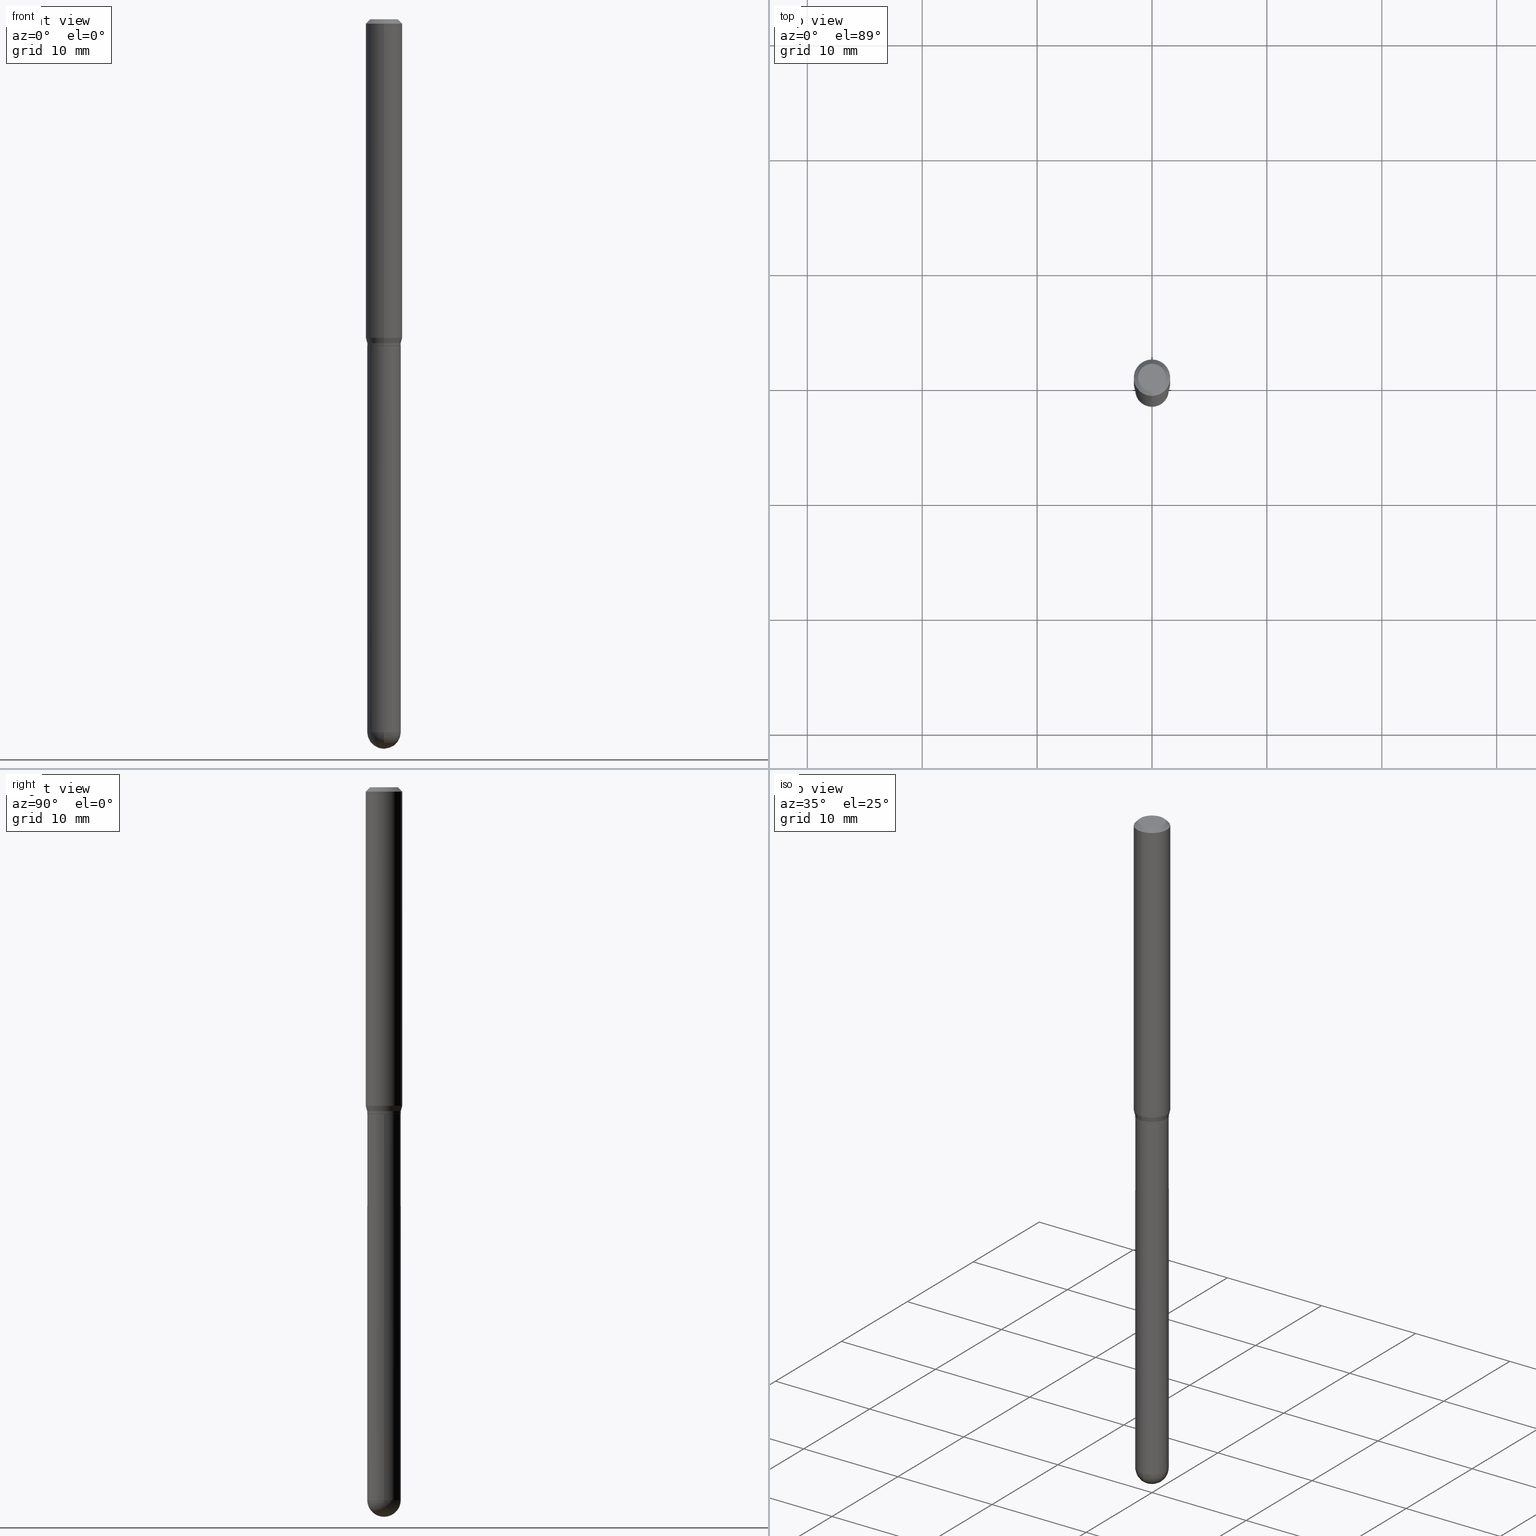
[diagram: canonical four-view strip — front | top / right | iso, engineering-drawing reading convention]
A machine part, canonical four-view strip (front | top / right | iso — engineering-drawing reading convention). The complete STEP part file that produces these views, byte-faithful:
ISO-10303-21;
HEADER;
FILE_DESCRIPTION (( 'STEP AP203' ),
    '1' );
FILE_NAME ('01581.STEP',
    '2024-03-07T19:42:00',
    ( '' ),
    ( '' ),
    'SwSTEP 2.0',
    'SolidWorks 2023',
    '' );
FILE_SCHEMA (( 'CONFIG_CONTROL_DESIGN' ));
ENDSEC;

DATA;
#1 = CC_DESIGN_PERSON_AND_ORGANIZATION_ASSIGNMENT ( #402, #507, ( #190 ) ) ;
#2 = DATE_TIME_ROLE ( 'classification_date' ) ;
#3 = ORIENTED_EDGE ( 'NONE', *, *, #29, .T. ) ;
#4 = DIRECTION ( 'NONE',  ( -2.445495560158936621E-29, 3.491443025629922431E-15, 1.000000000000000000 ) ) ;
#5 = ADVANCED_FACE ( 'NONE', ( #404 ), #366, .T. ) ;
#6 = ORIENTED_EDGE ( 'NONE', *, *, #217, .T. ) ;
#7 = ADVANCED_BREP_SHAPE_REPRESENTATION ( '01581', ( #459, #289, #442 ), #406 ) ;
#8 = DIRECTION ( 'NONE',  ( 1.000000000000000000, -6.982962677686265922E-15, 4.876176775795935232E-29 ) ) ;
#9 = DIRECTION ( 'NONE',  ( -2.445495560158936621E-29, 3.491443025629922431E-15, 1.000000000000000000 ) ) ;
#10 = AXIS2_PLACEMENT_3D ( 'NONE', #296, #251, #176 ) ;
#11 = CARTESIAN_POINT ( 'NONE',  ( 0.05750000000000000250, -4.311979453471284209E-15, -1.120000000000000329 ) ) ;
#12 = ORIENTED_EDGE ( 'NONE', *, *, #302, .F. ) ;
#13 = APPROVAL_PERSON_ORGANIZATION ( #435, #245, #468 ) ;
#14 = VERTEX_POINT ( 'NONE', #93 ) ;
#15 = ORIENTED_EDGE ( 'NONE', *, *, #135, .F. ) ;
#16 = DIRECTION ( 'NONE',  ( -2.445495560158936621E-29, 3.491443025629922431E-15, 1.000000000000000000 ) ) ;
#17 = AXIS2_PLACEMENT_3D ( 'NONE', #28, #33, #395 ) ;
#18 = CYLINDRICAL_SURFACE ( 'NONE', #419, 0.06250000000000000000 ) ;
#19 = EDGE_CURVE ( 'NONE', #196, #207, #132, .T. ) ;
#20 = DIRECTION ( 'NONE',  ( -2.445495560158936621E-29, 3.491443025629922431E-15, 1.000000000000000000 ) ) ;
#21 = CARTESIAN_POINT ( 'NONE',  ( 2.738955027378009755E-29, -3.910416188705514007E-15, -1.120000000000000329 ) ) ;
#22 = DIRECTION ( 'NONE',  ( -6.982962677686265922E-15, -1.000000000000000000, 2.396357889179178137E-15 ) ) ;
#23 = LINE ( 'NONE', #492, #213 ) ;
#24 = CARTESIAN_POINT ( 'NONE',  ( 4.085620730620579698E-16, 0.05750000000000005801, -2.007579739737207577E-16 ) ) ;
#25 = CARTESIAN_POINT ( 'NONE',  ( 4.050093593832844842E-16, 0.05699999999999608852, -1.120000000000000551 ) ) ;
#26 = AXIS2_PLACEMENT_3D ( 'NONE', #61, #224, #220 ) ;
#27 = DIRECTION ( 'NONE',  ( -2.445495560158936621E-29, 3.491443025629922431E-15, 1.000000000000000000 ) ) ;
#28 = CARTESIAN_POINT ( 'NONE',  ( 2.714500071776419767E-29, -3.875501758449215070E-15, -1.110000000000000098 ) ) ;
#29 = EDGE_CURVE ( 'NONE', #207, #121, #384, .T. ) ;
#30 = CONICAL_SURFACE ( 'NONE', #17, 0.05750000000000005801, 0.2617993877991506846 ) ;
#31 = CC_DESIGN_DATE_AND_TIME_ASSIGNMENT ( #283, #470, ( #484 ) ) ;
#32 = DIRECTION ( 'NONE',  ( -2.445468806185136597E-29, 3.491481338843145583E-15, 1.000000000000000000 ) ) ;
#33 = DIRECTION ( 'NONE',  ( -2.445495560158936621E-29, 3.491443025629922431E-15, 1.000000000000000000 ) ) ;
#34 = PERSON_AND_ORGANIZATION_ROLE ( 'design_supplier' ) ;
#35 = ORIENTED_EDGE ( 'NONE', *, *, #275, .T. ) ;
#36 = CARTESIAN_POINT ( 'NONE',  ( 0.000000000000000000, 0.000000000000000000, 0.000000000000000000 ) ) ;
#37 = ORIENTED_EDGE ( 'NONE', *, *, #210, .F. ) ;
#38 = CALENDAR_DATE ( 2024, 7, 3 ) ;
#39 = ORIENTED_EDGE ( 'NONE', *, *, #462, .F. ) ;
#40 = APPROVAL_DATE_TIME ( #464, #72 ) ;
#41 = EDGE_LOOP ( 'NONE', ( #325, #387, #433, #12 ) ) ;
#42 = CIRCLE ( 'NONE', #26, 0.05750000000000000250 ) ;
#43 = DIRECTION ( 'NONE',  ( -6.982962677686265922E-15, -1.000000000000000000, 3.483106191921935554E-15 ) ) ;
#44 = ADVANCED_FACE ( 'NONE', ( #258 ), #299, .F. ) ;
#45 = DATE_AND_TIME ( #403, #117 ) ;
#46 = DIRECTION ( 'NONE',  ( -6.982962677686265922E-15, -1.000000000000000000, 3.491443025629922431E-15 ) ) ;
#47 = CARTESIAN_POINT ( 'NONE',  ( -4.364351673553916201E-16, -0.06250000000000000000, 2.182151891018701273E-16 ) ) ;
#48 = CARTESIAN_POINT ( 'NONE',  ( 4.067857162226848841E-16, 0.05699999999999608852, -1.120000000000000551 ) ) ;
#49 = VERTEX_POINT ( 'NONE', #179 ) ;
#50 = VERTEX_POINT ( 'NONE', #11 ) ;
#51 = EDGE_CURVE ( 'NONE', #465, #279, #290, .T. ) ;
#52 = DIRECTION ( 'NONE',  ( -2.445495560158936621E-29, 3.491443025629922431E-15, 1.000000000000000000 ) ) ;
#53 = FACE_OUTER_BOUND ( 'NONE', #412, .T. ) ;
#54 = CARTESIAN_POINT ( 'NONE',  ( 4.015203539670203189E-16, 0.05749999999999149541, -2.442500000000000338 ) ) ;
#55 = ORIENTED_EDGE ( 'NONE', *, *, #497, .F. ) ;
#56 = ORIENTED_EDGE ( 'NONE', *, *, #29, .F. ) ;
#57 = CARTESIAN_POINT ( 'NONE',  ( 2.668866503375434655E-29, -3.810350544632300869E-15, -1.091339745962156105 ) ) ;
#58 = FACE_OUTER_BOUND ( 'NONE', #508, .T. ) ;
#59 = AXIS2_PLACEMENT_3D ( 'NONE', #443, #331, #43 ) ;
#60 = AXIS2_PLACEMENT_3D ( 'NONE', #57, #64, #221 ) ;
#61 = CARTESIAN_POINT ( 'NONE',  ( 5.973057559107196227E-29, -8.527943170124383355E-15, -2.442499999999999893 ) ) ;
#62 = PERSON ( 'UNSPECIFIED', 'UNSPECIFIED', 'UNSPECIFIED', ('UNSPECIFIED'), ('UNSPECIFIED'), ('UNSPECIFIED') ) ;
#63 = CARTESIAN_POINT ( 'NONE',  ( 5.968140352944414042E-29, -8.534984889219480121E-15, -2.442499999999999893 ) ) ;
#64 = DIRECTION ( 'NONE',  ( -2.445495560158936621E-29, 3.491443025629922431E-15, 1.000000000000000000 ) ) ;
#65 = CARTESIAN_POINT ( 'NONE',  ( -0.05750000000000000250, -5.810639061752296196E-15, -2.442499999999999893 ) ) ;
#66 = AXIS2_PLACEMENT_3D ( 'NONE', #182, #416, #151 ) ;
#67 = DIRECTION ( 'NONE',  ( 1.000000000000000000, -6.982962677686265922E-15, 4.883557194083112340E-29 ) ) ;
#68 = EDGE_CURVE ( 'NONE', #279, #463, #139, .T. ) ;
#69 = DIRECTION ( 'NONE',  ( 6.982962677686265922E-15, 1.000000000000000000, -3.483106191921935554E-15 ) ) ;
#70 = AXIS2_PLACEMENT_3D ( 'NONE', #488, #9, #142 ) ;
#71 = CIRCLE ( 'NONE', #341, 0.05750000000000000250 ) ;
#72 = APPROVAL ( #165, 'UNSPECIFIED' ) ;
#73 = APPROVAL_DATE_TIME ( #426, #245 ) ;
#74 = CONICAL_SURFACE ( 'NONE', #367, 0.05750000000000005801, 0.2617993877991506846 ) ;
#75 = APPROVAL_STATUS ( 'not_yet_approved' ) ;
#76 = ORIENTED_EDGE ( 'NONE', *, *, #453, .F. ) ;
#77 = EDGE_CURVE ( 'NONE', #49, #136, #330, .T. ) ;
#78 = CARTESIAN_POINT ( 'NONE',  ( 2.737732279597930116E-29, -3.908670467192699217E-15, -1.119500000000000384 ) ) ;
#79 = CYLINDRICAL_SURFACE ( 'NONE', #223, 0.05750000000000005801 ) ;
#80 = ORIENTED_EDGE ( 'NONE', *, *, #225, .F. ) ;
#81 = VERTEX_POINT ( 'NONE', #372 ) ;
#82 = ORIENTED_EDGE ( 'NONE', *, *, #217, .F. ) ;
#83 = LOCAL_TIME ( 14, 42, 0.000000000000000000, #172 ) ;
#84 = ORIENTED_EDGE ( 'NONE', *, *, #456, .T. ) ;
#85 = EDGE_CURVE ( 'NONE', #465, #277, #246, .T. ) ;
#86 = DIRECTION ( 'NONE',  ( -6.982962677686265922E-15, -1.000000000000000000, 2.396357889179178137E-15 ) ) ;
#87 = EDGE_CURVE ( 'NONE', #463, #49, #441, .T. ) ;
#88 = DIRECTION ( 'NONE',  ( -2.445468806185136597E-29, 3.491481338843145583E-15, 1.000000000000000000 ) ) ;
#89 = ORIENTED_EDGE ( 'NONE', *, *, #225, .T. ) ;
#90 = LINE ( 'NONE', #248, #116 ) ;
#91 = CIRCLE ( 'NONE', #171, 0.05750000000000007189 ) ;
#92 = CARTESIAN_POINT ( 'NONE',  ( 4.440892098500891416E-16, 0.06249999999999617667, -1.091339745962156327 ) ) ;
#93 = CARTESIAN_POINT ( 'NONE',  ( -3.773273898774340269E-16, -0.04749999999999999362, 1.569814042479620937E-16 ) ) ;
#94 = ORIENTED_EDGE ( 'NONE', *, *, #288, .T. ) ;
#95 = ADVANCED_FACE ( 'NONE', ( #208 ), #74, .T. ) ;
#96 = ADVANCED_FACE ( 'NONE', ( #485 ), #130, .T. ) ;
#97 = CARTESIAN_POINT ( 'NONE',  ( 4.085620730620851361E-16, 0.05749999999999618611, -1.110000000000000320 ) ) ;
#98 = DIRECTION ( 'NONE',  ( -2.445468806185136597E-29, 3.491481338843145583E-15, 1.000000000000000000 ) ) ;
#99 = CIRCLE ( 'NONE', #493, 0.05750000000000005801 ) ;
#100 = EDGE_LOOP ( 'NONE', ( #481, #94 ) ) ;
#101 = FACE_OUTER_BOUND ( 'NONE', #100, .T. ) ;
#102 = CARTESIAN_POINT ( 'NONE',  ( 0.000000000000000000, 0.000000000000000000, 0.000000000000000000 ) ) ;
#103 = EDGE_CURVE ( 'NONE', #178, #428, #155, .T. ) ;
#104 = LINE ( 'NONE', #25, #106 ) ;
#105 = COORDINATED_UNIVERSAL_TIME_OFFSET ( 5, 0, .BEHIND. ) ;
#106 = VECTOR ( 'NONE', #418, 39.37007874015748143 ) ;
#107 = CARTESIAN_POINT ( 'NONE',  ( 0.05750000000000000250, -6.620721488781313792E-15, -2.442499999999999893 ) ) ;
#108 = CARTESIAN_POINT ( 'NONE',  ( 0.000000000000000000, 0.000000000000000000, 0.000000000000000000 ) ) ;
#109 = EDGE_CURVE ( 'NONE', #143, #207, #42, .T. ) ;
#110 = DIRECTION ( 'NONE',  ( -6.982962677686266711E-15, -1.000000000000000000, 2.375519994490661302E-15 ) ) ;
#111 = CARTESIAN_POINT ( 'NONE',  ( 2.738925062927354020E-29, -3.910459099504324188E-15, -1.120000000000000329 ) ) ;
#112 = AXIS2_PLACEMENT_3D ( 'NONE', #349, #98, #256 ) ;
#113 = LENGTH_MEASURE_WITH_UNIT ( LENGTH_MEASURE( 0.02539999999999999897 ), #504 );
#114 = EDGE_CURVE ( 'NONE', #196, #335, #91, .T. ) ;
#115 = FACE_OUTER_BOUND ( 'NONE', #281, .T. ) ;
#116 = VECTOR ( 'NONE', #405, 39.37007874015748143 ) ;
#117 = LOCAL_TIME ( 14, 42, 0.000000000000000000, #471 ) ;
#118 = ORIENTED_EDGE ( 'NONE', *, *, #275, .F. ) ;
#119 = CARTESIAN_POINT ( 'NONE',  ( 0.000000000000000000, 0.000000000000000000, 0.000000000000000000 ) ) ;
#120 = ORIENTED_EDGE ( 'NONE', *, *, #103, .F. ) ;
#121 = VERTEX_POINT ( 'NONE', #107 ) ;
#122 = ORIENTED_EDGE ( 'NONE', *, *, #19, .T. ) ;
#123 = PERSON_AND_ORGANIZATION_ROLE ( 'creator' ) ;
#124 = EDGE_LOOP ( 'NONE', ( #76, #287, #3, #163, #320 ) ) ;
#125 = UNCERTAINTY_MEASURE_WITH_UNIT (LENGTH_MEASURE( 1.000000000000000082E-05 ), #272, 'distance_accuracy_value', 'NONE');
#126 = DIRECTION ( 'NONE',  ( 1.839019923739603076E-15, 0.2588190451025253469, 0.9659258262890670910 ) ) ;
#127 = PERSON_AND_ORGANIZATION ( #62, #358 ) ;
#128 = ORIENTED_EDGE ( 'NONE', *, *, #382, .T. ) ;
#129 = ADVANCED_FACE ( 'NONE', ( #228 ), #340, .T. ) ;
#130 = CYLINDRICAL_SURFACE ( 'NONE', #429, 0.05750000000000000250 ) ;
#131 = EDGE_LOOP ( 'NONE', ( #352, #327 ) ) ;
#132 = CIRCLE ( 'NONE', #10, 0.05750000000000007189 ) ;
#133 = AXIS2_PLACEMENT_3D ( 'NONE', #350, #308, #110 ) ;
#134 = EDGE_CURVE ( 'NONE', #279, #465, #199, .T. ) ;
#135 = EDGE_CURVE ( 'NONE', #81, #136, #309, .T. ) ;
#136 = VERTEX_POINT ( 'NONE', #458 ) ;
#137 = ADVANCED_FACE ( 'NONE', ( #101 ), #231, .F. ) ;
#138 = CARTESIAN_POINT ( 'NONE',  ( 3.668243340238407173E-31, -5.237164538444886679E-17, -0.01500000000000000812 ) ) ;
#139 = LINE ( 'NONE', #478, #454 ) ;
#140 = DIRECTION ( 'NONE',  ( -4.851104656540964275E-15, -0.7071067811865500152, -0.7071067811865450192 ) ) ;
#141 = DIRECTION ( 'NONE',  ( -2.445495560158936341E-29, 3.491443025629922431E-15, 1.000000000000000000 ) ) ;
#142 = DIRECTION ( 'NONE',  ( -6.982962677686266711E-15, -1.000000000000000000, 2.375519994490661302E-15 ) ) ;
#143 = VERTEX_POINT ( 'NONE', #65 ) ;
#144 = SPHERICAL_SURFACE ( 'NONE', #503, 0.05750000000000007189 ) ;
#145 = AXIS2_PLACEMENT_3D ( 'NONE', #301, #265, #69 ) ;
#146 = DIRECTION ( 'NONE',  ( -6.982962677686265922E-15, -1.000000000000000000, 2.396357889179178137E-15 ) ) ;
#147 = EDGE_LOOP ( 'NONE', ( #200, #318, #369, #361, #354 ) ) ;
#148 = CARTESIAN_POINT ( 'NONE',  ( -4.364351673553650454E-16, -0.06250000000000383027, -1.091339745962155883 ) ) ;
#149 = ADVANCED_FACE ( 'NONE', ( #268 ), #377, .T. ) ;
#150 = DIRECTION ( 'NONE',  ( 1.000000000000000000, -6.982962677686265133E-15, 0.000000000000000000 ) ) ;
#151 = DIRECTION ( 'NONE',  ( -6.982962677686265922E-15, -1.000000000000000000, 3.483106191921935554E-15 ) ) ;
#152 = DIRECTION ( 'NONE',  ( -6.982962677686266711E-15, -1.000000000000000000, 3.491443025629922826E-15 ) ) ;
#153 = FACE_OUTER_BOUND ( 'NONE', #212, .T. ) ;
#154 = CARTESIAN_POINT ( 'NONE',  ( -0.05750000000000000250, -5.810639061752296196E-15, -1.120000000000000329 ) ) ;
#155 = CIRCLE ( 'NONE', #501, 0.05700000000000000205 ) ;
#156 = CARTESIAN_POINT ( 'NONE',  ( -3.980288726280897482E-16, -0.05700000000000390865, -1.120000000000000107 ) ) ;
#157 = ADVANCED_FACE ( 'NONE', ( #424 ), #300, .T. ) ;
#158 = CARTESIAN_POINT ( 'NONE',  ( 4.263256414560873608E-16, 0.05749999999999618611, -1.110000000000000320 ) ) ;
#159 = DIRECTION ( 'NONE',  ( 4.937700262164548042E-15, 0.7071067811865451302, -0.7071067811865499042 ) ) ;
#160 = ADVANCED_FACE ( 'NONE', ( #153 ), #421, .T. ) ;
#161 = PERSON_AND_ORGANIZATION ( #62, #358 ) ;
#162 = ORIENTED_EDGE ( 'NONE', *, *, #77, .F. ) ;
#163 = ORIENTED_EDGE ( 'NONE', *, *, #422, .T. ) ;
#164 = DIRECTION ( 'NONE',  ( -2.445468806185136597E-29, 3.491481338843145583E-15, 1.000000000000000000 ) ) ;
#165 = APPROVAL_STATUS ( 'not_yet_approved' ) ;
#166 = ORIENTED_EDGE ( 'NONE', *, *, #297, .F. ) ;
#167 = AXIS2_PLACEMENT_3D ( 'NONE', #417, #20, #152 ) ;
#168 = DIRECTION ( 'NONE',  ( 0.000000000000000000, 0.000000000000000000, 1.000000000000000000 ) ) ;
#169 = DIRECTION ( 'NONE',  ( -6.982962677686266711E-15, -1.000000000000000000, 3.491443025629922826E-15 ) ) ;
#170 = PRODUCT_DEFINITION_SHAPE ( 'NONE', 'NONE',  #484 ) ;
#171 = AXIS2_PLACEMENT_3D ( 'NONE', #498, #67, #261 ) ;
#172 = COORDINATED_UNIVERSAL_TIME_OFFSET ( 5, 0, .BEHIND. ) ;
#173 = ORIENTED_EDGE ( 'NONE', *, *, #298, .F. ) ;
#174 = DIRECTION ( 'NONE',  ( -6.982962677686266711E-15, -1.000000000000000000, 2.375519994490661302E-15 ) ) ;
#175 = DIRECTION ( 'NONE',  ( -2.445495560158936621E-29, 3.491443025629922431E-15, 1.000000000000000000 ) ) ;
#176 = DIRECTION ( 'NONE',  ( -7.105427357601000281E-15, -1.000000000000000000, 0.000000000000000000 ) ) ;
#177 = AXIS2_PLACEMENT_3D ( 'NONE', #380, #195, #22 ) ;
#178 = VERTEX_POINT ( 'NONE', #156 ) ;
#179 = CARTESIAN_POINT ( 'NONE',  ( -4.364351673553912750E-16, -0.06250000000000005551, -0.01499999999999979128 ) ) ;
#180 = ORIENTED_EDGE ( 'NONE', *, *, #210, .T. ) ;
#181 = CIRCLE ( 'NONE', #467, 0.05750000000000005801 ) ;
#182 = CARTESIAN_POINT ( 'NONE',  ( 3.668243340238407173E-31, -5.237164538444886679E-17, -0.01500000000000000812 ) ) ;
#183 = CARTESIAN_POINT ( 'NONE',  ( 0.000000000000000000, 0.000000000000000000, 0.000000000000000000 ) ) ;
#184 = CARTESIAN_POINT ( 'NONE',  ( -4.015203539669337414E-16, -0.05750000000000403400, -1.119500000000000162 ) ) ;
#185 = CIRCLE ( 'NONE', #112, 0.05750000000000000250 ) ;
#186 = DIRECTION ( 'NONE',  ( 1.000000000000000000, -6.982962677686265922E-15, 4.876176775795935232E-29 ) ) ;
#187 = DIRECTION ( 'NONE',  ( -2.445468806185136877E-29, 3.491481338843145188E-15, 1.000000000000000000 ) ) ;
#188 = CARTESIAN_POINT ( 'NONE',  ( 2.738925062927354020E-29, -3.910459099504324188E-15, -1.120000000000000329 ) ) ;
#189 = APPLICATION_CONTEXT ( 'configuration controlled 3d designs of mechanical parts and assemblies' ) ;
#190 = PRODUCT_DEFINITION_FORMATION_WITH_SPECIFIED_SOURCE ( 'ANY', '', #400, .NOT_KNOWN. ) ;
#191 = ADVANCED_FACE ( 'NONE', ( #58 ), #18, .T. ) ;
#192 = FACE_OUTER_BOUND ( 'NONE', #41, .T. ) ;
#193 = CARTESIAN_POINT ( 'NONE',  ( 2.737732279597930116E-29, -3.908670467192699217E-15, -1.119500000000000384 ) ) ;
#194 = AXIS2_PLACEMENT_3D ( 'NONE', #311, #141, #46 ) ;
#195 = DIRECTION ( 'NONE',  ( -2.445495560158936621E-29, 3.491443025629922431E-15, 1.000000000000000000 ) ) ;
#196 = VERTEX_POINT ( 'NONE', #226 ) ;
#197 = CC_DESIGN_PERSON_AND_ORGANIZATION_ASSIGNMENT ( #276, #201, ( #400 ) ) ;
#198 = CLOSED_SHELL ( 'NONE', ( #250, #149, #157, #191, #95, #232, #160, #282, #44, #253, #397, #378 ) ) ;
#199 = CIRCLE ( 'NONE', #133, 0.05750000000000005801 ) ;
#200 = ORIENTED_EDGE ( 'NONE', *, *, #505, .T. ) ;
#201 = PERSON_AND_ORGANIZATION_ROLE ( 'design_owner' ) ;
#202 = ORIENTED_EDGE ( 'NONE', *, *, #87, .T. ) ;
#203 = EDGE_CURVE ( 'NONE', #50, #466, #264, .T. ) ;
#204 = EDGE_LOOP ( 'NONE', ( #173, #128, #432, #293 ) ) ;
#205 = VECTOR ( 'NONE', #411, 39.37007874015748143 ) ;
#206 = SECURITY_CLASSIFICATION_LEVEL ( 'unclassified' ) ;
#207 = VERTEX_POINT ( 'NONE', #303 ) ;
#208 = FACE_OUTER_BOUND ( 'NONE', #434, .T. ) ;
#209 = APPROVAL_DATE_TIME ( #45, #334 ) ;
#210 = EDGE_CURVE ( 'NONE', #428, #323, #104, .T. ) ;
#211 = DIRECTION ( 'NONE',  ( -6.982962677686266711E-15, -1.000000000000000000, 3.491443025629922826E-15 ) ) ;
#212 = EDGE_LOOP ( 'NONE', ( #166, #313, #202, #39 ) ) ;
#213 = VECTOR ( 'NONE', #27, 39.37007874015748143 ) ;
#214 = CARTESIAN_POINT ( 'NONE',  ( 3.316907271900976096E-16, 0.04749999999999999362, -1.702746134521509086E-16 ) ) ;
#215 = LINE ( 'NONE', #336, #205 ) ;
#216 = DIRECTION ( 'NONE',  ( -2.445468806185136597E-29, 3.491481338843145583E-15, 1.000000000000000000 ) ) ;
#217 = EDGE_CURVE ( 'NONE', #178, #362, #379, .T. ) ;
#218 = DIRECTION ( 'NONE',  ( -1.807323732225332900E-15, -0.2588190451025185745, 0.9659258262890689783 ) ) ;
#219 = LOCAL_TIME ( 14, 42, 0.000000000000000000, #235 ) ;
#220 = DIRECTION ( 'NONE',  ( 1.000000000000000000, -6.982962677686273810E-15, 0.000000000000000000 ) ) ;
#221 = DIRECTION ( 'NONE',  ( -6.982962677686265922E-15, -1.000000000000000000, 4.370956789862821150E-15 ) ) ;
#222 = AXIS2_PLACEMENT_3D ( 'NONE', #214, #446, #368 ) ;
#223 = AXIS2_PLACEMENT_3D ( 'NONE', #36, #4, #169 ) ;
#224 = DIRECTION ( 'NONE',  ( -2.445468806185136597E-29, 3.491481338843145583E-15, 1.000000000000000000 ) ) ;
#225 = EDGE_CURVE ( 'NONE', #428, #178, #408, .T. ) ;
#226 = CARTESIAN_POINT ( 'NONE',  ( 6.111213412381450399E-29, -8.732224206655412537E-15, -2.500000000000000000 ) ) ;
#227 = CC_DESIGN_SECURITY_CLASSIFICATION ( #274, ( #190 ) ) ;
#228 = FACE_OUTER_BOUND ( 'NONE', #500, .T. ) ;
#229 = CARTESIAN_POINT ( 'NONE',  ( 2.668866503375434655E-29, -3.810350544632300869E-15, -1.091339745962156105 ) ) ;
#230 = VECTOR ( 'NONE', #159, 39.37007874015748143 ) ;
#231 = PLANE ( 'NONE',  #312 ) ;
#232 = ADVANCED_FACE ( 'NONE', ( #192 ), #30, .T. ) ;
#233 = APPROVAL_STATUS ( 'not_yet_approved' ) ;
#234 = VECTOR ( 'NONE', #401, 39.37007874015748143 ) ;
#235 = COORDINATED_UNIVERSAL_TIME_OFFSET ( 5, 0, .BEHIND. ) ;
#236 = ORIENTED_EDGE ( 'NONE', *, *, #19, .F. ) ;
#237 = DESIGN_CONTEXT ( 'detailed design', #189, 'design' ) ;
#238 = CC_DESIGN_PERSON_AND_ORGANIZATION_ASSIGNMENT ( #278, #34, ( #190 ) ) ;
#239 = ORIENTED_EDGE ( 'NONE', *, *, #298, .T. ) ;
#240 = PLANE ( 'NONE',  #194 ) ;
#241 = CIRCLE ( 'NONE', #365, 0.06250000000000000000 ) ;
#242 = ORIENTED_EDGE ( 'NONE', *, *, #109, .F. ) ;
#243 = CALENDAR_DATE ( 2024, 7, 3 ) ;
#244 = EDGE_LOOP ( 'NONE', ( #490, #35, #436, #15 ) ) ;
#245 = APPROVAL ( #75, 'UNSPECIFIED' ) ;
#246 = LINE ( 'NONE', #97, #360 ) ;
#247 = VECTOR ( 'NONE', #306, 39.37007874015748143 ) ;
#248 = CARTESIAN_POINT ( 'NONE',  ( 0.05750000000000000250, -4.015203539669603161E-16, 2.803801646082662941E-30 ) ) ;
#249 = DIRECTION ( 'NONE',  ( 1.000000000000000000, -6.982962677686273810E-15, 0.000000000000000000 ) ) ;
#250 = ADVANCED_FACE ( 'NONE', ( #115 ), #79, .T. ) ;
#251 = DIRECTION ( 'NONE',  ( -1.000000000000000000, 7.105427357601001070E-15, -4.926315508542082329E-29 ) ) ;
#252 = CC_DESIGN_APPROVAL ( #334, ( #274 ) ) ;
#253 = ADVANCED_FACE ( 'NONE', ( #280 ), #240, .F. ) ;
#254 = CARTESIAN_POINT ( 'NONE',  ( 2.714500071776419767E-29, -3.875501758449215070E-15, -1.110000000000000098 ) ) ;
#255 = CIRCLE ( 'NONE', #60, 0.06250000000000000000 ) ;
#256 = DIRECTION ( 'NONE',  ( 1.000000000000000000, -6.982962677686273810E-15, 0.000000000000000000 ) ) ;
#257 = FACE_OUTER_BOUND ( 'NONE', #357, .T. ) ;
#258 = FACE_OUTER_BOUND ( 'NONE', #131, .T. ) ;
#259 = DIRECTION ( 'NONE',  ( -6.982962677686265922E-15, -1.000000000000000000, 3.491443025629922037E-15 ) ) ;
#260 = DIRECTION ( 'NONE',  ( -6.982962677686266711E-15, -1.000000000000000000, 3.491443025629922826E-15 ) ) ;
#261 = DIRECTION ( 'NONE',  ( 6.982962677686265922E-15, 1.000000000000000000, 0.000000000000000000 ) ) ;
#262 = DIMENSIONAL_EXPONENTS ( 1.000000000000000000, 0.000000000000000000, 0.000000000000000000, 0.000000000000000000, 0.000000000000000000, 0.000000000000000000, 0.000000000000000000 ) ;
#263 = EDGE_CURVE ( 'NONE', #81, #14, #322, .T. ) ;
#264 = CIRCLE ( 'NONE', #509, 0.05750000000000000250 ) ;
#265 = DIRECTION ( 'NONE',  ( 2.445495560158936621E-29, -3.491443025629922431E-15, -1.000000000000000000 ) ) ;
#266 = LINE ( 'NONE', #24, #292 ) ;
#267 = DIRECTION ( 'NONE',  ( -2.445468806185136597E-29, 3.491481338843145583E-15, 1.000000000000000000 ) ) ;
#268 = FACE_OUTER_BOUND ( 'NONE', #314, .T. ) ;
#269 = AXIS2_PLACEMENT_3D ( 'NONE', #183, #448, #259 ) ;
#270 = CC_DESIGN_PERSON_AND_ORGANIZATION_ASSIGNMENT ( #479, #123, ( #484 ) ) ;
#271 = APPLICATION_CONTEXT ( 'configuration controlled 3d designs of mechanical parts and assemblies' ) ;
#272 =( CONVERSION_BASED_UNIT ( 'INCH', #113 ) LENGTH_UNIT ( ) NAMED_UNIT ( #262 ) );
#273 = MECHANICAL_CONTEXT ( 'NONE', #271, 'mechanical' ) ;
#274 = SECURITY_CLASSIFICATION ( '', '', #206 ) ;
#275 = EDGE_CURVE ( 'NONE', #14, #49, #440, .T. ) ;
#276 = PERSON_AND_ORGANIZATION ( #62, #358 ) ;
#277 = VERTEX_POINT ( 'NONE', #92 ) ;
#278 = PERSON_AND_ORGANIZATION ( #62, #358 ) ;
#279 = VERTEX_POINT ( 'NONE', #487 ) ;
#280 = FACE_OUTER_BOUND ( 'NONE', #472, .T. ) ;
#281 = EDGE_LOOP ( 'NONE', ( #469, #239, #294, #55 ) ) ;
#282 = ADVANCED_FACE ( 'NONE', ( #257 ), #425, .T. ) ;
#283 = DATE_AND_TIME ( #317, #396 ) ;
#284 = ORIENTED_EDGE ( 'NONE', *, *, #87, .F. ) ;
#285 = APPROVAL_PERSON_ORGANIZATION ( #161, #334, #319 ) ;
#286 = ORIENTED_EDGE ( 'NONE', *, *, #114, .F. ) ;
#287 = ORIENTED_EDGE ( 'NONE', *, *, #109, .T. ) ;
#288 = EDGE_CURVE ( 'NONE', #466, #50, #71, .T. ) ;
#289 = MANIFOLD_SOLID_BREP ( 'Body-Move/Copy2[2]', #198 ) ;
#290 = CIRCLE ( 'NONE', #70, 0.05750000000000005801 ) ;
#291 = CARTESIAN_POINT ( 'NONE',  ( 0.000000000000000000, 0.000000000000000000, 0.000000000000000000 ) ) ;
#292 = VECTOR ( 'NONE', #444, 39.37007874015748143 ) ;
#293 = ORIENTED_EDGE ( 'NONE', *, *, #51, .F. ) ;
#294 = ORIENTED_EDGE ( 'NONE', *, *, #134, .F. ) ;
#295 = DIRECTION ( 'NONE',  ( 2.445495560158936621E-29, -3.491443025629922431E-15, -1.000000000000000000 ) ) ;
#296 = CARTESIAN_POINT ( 'NONE',  ( 5.968140352944414042E-29, -8.534984889219480121E-15, -2.442499999999999893 ) ) ;
#297 = EDGE_CURVE ( 'NONE', #277, #136, #215, .T. ) ;
#298 = EDGE_CURVE ( 'NONE', #323, #465, #266, .T. ) ;
#299 = PLANE ( 'NONE',  #222 ) ;
#300 = CONICAL_SURFACE ( 'NONE', #145, 0.06250000000000000000, 0.7853981633974483900 ) ;
#301 = CARTESIAN_POINT ( 'NONE',  ( 3.668243340238407173E-31, -5.237164538444886679E-17, -0.01500000000000000812 ) ) ;
#302 = EDGE_CURVE ( 'NONE', #277, #463, #255, .T. ) ;
#303 = CARTESIAN_POINT ( 'NONE',  ( -4.085620730619980656E-16, -0.05750000000000857203, -2.442499999999999893 ) ) ;
#304 = FACE_OUTER_BOUND ( 'NONE', #512, .T. ) ;
#305 = EDGE_CURVE ( 'NONE', #362, #323, #99, .T. ) ;
#306 = DIRECTION ( 'NONE',  ( -4.937700262164674260E-15, -0.7071067811865632269, 0.7071067811865319186 ) ) ;
#307 = DIRECTION ( 'NONE',  ( 6.982962677686266711E-15, 1.000000000000000000, -4.751039988981321814E-15 ) ) ;
#308 = DIRECTION ( 'NONE',  ( -2.445495560158936621E-29, 3.491443025629922431E-15, 1.000000000000000000 ) ) ;
#309 = LINE ( 'NONE', #383, #230 ) ;
#310 = PRODUCT_RELATED_PRODUCT_CATEGORY ( 'detail', '', ( #400 ) ) ;
#311 = CARTESIAN_POINT ( 'NONE',  ( 2.738955027378009755E-29, -3.910416188705514007E-15, -1.120000000000000329 ) ) ;
#312 = AXIS2_PLACEMENT_3D ( 'NONE', #452, #344, #385 ) ;
#313 = ORIENTED_EDGE ( 'NONE', *, *, #302, .T. ) ;
#314 = EDGE_LOOP ( 'NONE', ( #394, #180, #486, #82 ) ) ;
#315 = EDGE_CURVE ( 'NONE', #121, #335, #185, .T. ) ;
#316 = ORIENTED_EDGE ( 'NONE', *, *, #456, .F. ) ;
#317 = CALENDAR_DATE ( 2024, 7, 3 ) ;
#318 = ORIENTED_EDGE ( 'NONE', *, *, #453, .T. ) ;
#319 = APPROVAL_ROLE ( '' ) ;
#320 = ORIENTED_EDGE ( 'NONE', *, *, #288, .F. ) ;
#321 = AXIS2_PLACEMENT_3D ( 'NONE', #363, #88, #8 ) ;
#322 = CIRCLE ( 'NONE', #445, 0.04749999999999999362 ) ;
#323 = VERTEX_POINT ( 'NONE', #449 ) ;
#324 = APPLICATION_PROTOCOL_DEFINITION ( 'international standard', 'config_control_design', 1994, #271 ) ;
#325 = ORIENTED_EDGE ( 'NONE', *, *, #85, .F. ) ;
#326 = APPROVAL_ROLE ( '' ) ;
#327 = ORIENTED_EDGE ( 'NONE', *, *, #381, .T. ) ;
#328 = CONICAL_SURFACE ( 'NONE', #483, 0.05700000000000000205, 0.7853981633974739252 ) ;
#329 = ORIENTED_EDGE ( 'NONE', *, *, #85, .T. ) ;
#330 = CIRCLE ( 'NONE', #59, 0.06250000000000000000 ) ;
#331 = DIRECTION ( 'NONE',  ( -2.445495560158936621E-29, 3.491443025629922431E-15, 1.000000000000000000 ) ) ;
#332 = AXIS2_PLACEMENT_3D ( 'NONE', #494, #450, #414 ) ;
#333 = ORIENTED_EDGE ( 'NONE', *, *, #114, .T. ) ;
#334 = APPROVAL ( #233, 'UNSPECIFIED' ) ;
#335 = VERTEX_POINT ( 'NONE', #54 ) ;
#336 = CARTESIAN_POINT ( 'NONE',  ( 4.440892098500625669E-16, 0.06250000000000000000, -2.182151891018701273E-16 ) ) ;
#337 = CARTESIAN_POINT ( 'NONE',  ( -4.287811248607203282E-16, -0.06250000000000005551, -0.01499999999999979128 ) ) ;
#338 = ORIENTED_EDGE ( 'NONE', *, *, #315, .F. ) ;
#339 = VECTOR ( 'NONE', #187, 39.37007874015748143 ) ;
#340 = SPHERICAL_SURFACE ( 'NONE', #353, 0.05750000000000007189 ) ;
#341 = AXIS2_PLACEMENT_3D ( 'NONE', #111, #32, #389 ) ;
#342 = DIRECTION ( 'NONE',  ( -6.982962677686265922E-15, -1.000000000000000000, 4.370956789862821150E-15 ) ) ;
#343 = FACE_OUTER_BOUND ( 'NONE', #204, .T. ) ;
#344 = DIRECTION ( 'NONE',  ( 2.438088387897960049E-29, -3.491481338843145188E-15, -1.000000000000000000 ) ) ;
#345 = DIRECTION ( 'NONE',  ( -2.445495560158936621E-29, 3.491443025629922431E-15, 1.000000000000000000 ) ) ;
#346 = CARTESIAN_POINT ( 'NONE',  ( -3.980288726280897482E-16, -0.05700000000000390865, -1.120000000000000107 ) ) ;
#347 = LOCAL_TIME ( 14, 42, 0.000000000000000000, #105 ) ;
#348 = DIRECTION ( 'NONE',  ( -2.445495560158936621E-29, 3.491443025629922431E-15, 1.000000000000000000 ) ) ;
#349 = CARTESIAN_POINT ( 'NONE',  ( 5.973057559107196227E-29, -8.527943170124383355E-15, -2.442499999999999893 ) ) ;
#350 = CARTESIAN_POINT ( 'NONE',  ( 2.714500071776419767E-29, -3.875501758449215070E-15, -1.110000000000000098 ) ) ;
#351 = DIRECTION ( 'NONE',  ( 1.000000000000000000, -6.982962677686273810E-15, 0.000000000000000000 ) ) ;
#352 = ORIENTED_EDGE ( 'NONE', *, *, #263, .T. ) ;
#353 = AXIS2_PLACEMENT_3D ( 'NONE', #423, #457, #502 ) ;
#354 = ORIENTED_EDGE ( 'NONE', *, *, #315, .T. ) ;
#355 = COORDINATED_UNIVERSAL_TIME_OFFSET ( 5, 0, .BEHIND. ) ;
#356 = DATE_AND_TIME ( #480, #347 ) ;
#357 = EDGE_LOOP ( 'NONE', ( #118, #476, #398, #390 ) ) ;
#358 = ORGANIZATION ( 'UNSPECIFIED', 'UNSPECIFIED', '' ) ;
#359 =( NAMED_UNIT ( * ) SI_UNIT ( $, .STERADIAN. ) SOLID_ANGLE_UNIT ( ) );
#360 = VECTOR ( 'NONE', #126, 39.37007874015748143 ) ;
#361 = ORIENTED_EDGE ( 'NONE', *, *, #422, .F. ) ;
#362 = VERTEX_POINT ( 'NONE', #184 ) ;
#363 = CARTESIAN_POINT ( 'NONE',  ( 0.000000000000000000, 0.000000000000000000, 0.000000000000000000 ) ) ;
#364 = SHAPE_DEFINITION_REPRESENTATION ( #170, #7 ) ;
#365 = AXIS2_PLACEMENT_3D ( 'NONE', #229, #16, #342 ) ;
#366 = CYLINDRICAL_SURFACE ( 'NONE', #321, 0.05750000000000000250 ) ;
#367 = AXIS2_PLACEMENT_3D ( 'NONE', #254, #52, #174 ) ;
#368 = DIRECTION ( 'NONE',  ( 6.982962677686265922E-15, 1.000000000000000000, -3.491443025629922431E-15 ) ) ;
#369 = ORIENTED_EDGE ( 'NONE', *, *, #203, .F. ) ;
#370 = DIRECTION ( 'NONE',  ( -2.445495560158936621E-29, 3.491443025629922431E-15, 1.000000000000000000 ) ) ;
#371 = CYLINDRICAL_SURFACE ( 'NONE', #438, 0.05750000000000005801 ) ;
#372 = CARTESIAN_POINT ( 'NONE',  ( 3.840629472727447874E-16, 0.04749999999999999362, -1.747056831868805136E-16 ) ) ;
#373 = CIRCLE ( 'NONE', #66, 0.06250000000000000000 ) ;
#374 = CARTESIAN_POINT ( 'NONE',  ( -0.05750000000000000250, 4.085620730620576246E-16, -2.828387676896570712E-30 ) ) ;
#375 = DIRECTION ( 'NONE',  ( -6.982962677686266711E-15, -1.000000000000000000, 2.375519994490661302E-15 ) ) ;
#376 = DIRECTION ( 'NONE',  ( -2.445495560158936621E-29, 3.491443025629922431E-15, 1.000000000000000000 ) ) ;
#377 = CONICAL_SURFACE ( 'NONE', #332, 0.05700000000000000205, 0.7853981633974739252 ) ;
#378 = ADVANCED_FACE ( 'NONE', ( #343 ), #371, .T. ) ;
#379 = LINE ( 'NONE', #346, #247 ) ;
#380 = CARTESIAN_POINT ( 'NONE',  ( 2.738955027378009755E-29, -3.910416188705514007E-15, -1.120000000000000329 ) ) ;
#381 = EDGE_CURVE ( 'NONE', #14, #81, #461, .T. ) ;
#382 = EDGE_CURVE ( 'NONE', #323, #362, #181, .T. ) ;
#383 = CARTESIAN_POINT ( 'NONE',  ( 4.364351673553919652E-16, 0.06249999999999995143, -0.01500000000000022669 ) ) ;
#384 = CIRCLE ( 'NONE', #437, 0.05750000000000000250 ) ;
#385 = DIRECTION ( 'NONE',  ( -1.000000000000000000, 6.982962677686265922E-15, -4.876176775795935793E-29 ) ) ;
#386 = CARTESIAN_POINT ( 'NONE',  ( 5.973057559107196227E-29, -8.527943170124383355E-15, -2.442499999999999893 ) ) ;
#387 = ORIENTED_EDGE ( 'NONE', *, *, #51, .T. ) ;
#388 = CC_DESIGN_APPROVAL ( #72, ( #484 ) ) ;
#389 = DIRECTION ( 'NONE',  ( 1.000000000000000000, -6.982962677686265133E-15, 0.000000000000000000 ) ) ;
#390 = ORIENTED_EDGE ( 'NONE', *, *, #462, .T. ) ;
#391 = CLOSED_SHELL ( 'NONE', ( #96, #129, #137, #474, #5 ) ) ;
#392 = VECTOR ( 'NONE', #140, 39.37007874015748143 ) ;
#393 = DIRECTION ( 'NONE',  ( 1.000000000000000000, 0.000000000000000000, 0.000000000000000000 ) ) ;
#394 = ORIENTED_EDGE ( 'NONE', *, *, #103, .T. ) ;
#395 = DIRECTION ( 'NONE',  ( -6.982962677686266711E-15, -1.000000000000000000, 2.375519994490661302E-15 ) ) ;
#396 = LOCAL_TIME ( 14, 42, 0.000000000000000000, #355 ) ;
#397 = ADVANCED_FACE ( 'NONE', ( #53 ), #328, .T. ) ;
#398 = ORIENTED_EDGE ( 'NONE', *, *, #135, .T. ) ;
#399 = CARTESIAN_POINT ( 'NONE',  ( 2.738955027378009755E-29, -3.910416188705514007E-15, -1.120000000000000329 ) ) ;
#400 = PRODUCT ( '01581', '01581', '', ( #273 ) ) ;
#401 = DIRECTION ( 'NONE',  ( -2.445495560158936621E-29, 3.491443025629922431E-15, 1.000000000000000000 ) ) ;
#402 = PERSON_AND_ORGANIZATION ( #62, #358 ) ;
#403 = CALENDAR_DATE ( 2024, 7, 3 ) ;
#404 = FACE_OUTER_BOUND ( 'NONE', #124, .T. ) ;
#405 = DIRECTION ( 'NONE',  ( -2.445468806185136877E-29, 3.491481338843145188E-15, 1.000000000000000000 ) ) ;
#406 =( GEOMETRIC_REPRESENTATION_CONTEXT ( 3 ) GLOBAL_UNCERTAINTY_ASSIGNED_CONTEXT ( ( #125 ) ) GLOBAL_UNIT_ASSIGNED_CONTEXT ( ( #272, #430, #359 ) ) REPRESENTATION_CONTEXT ( 'NONE', 'WORKASPACE' ) );
#407 = CARTESIAN_POINT ( 'NONE',  ( 5.973057559107196227E-29, -8.527943170124383355E-15, -2.442499999999999893 ) ) ;
#408 = CIRCLE ( 'NONE', #177, 0.05700000000000000205 ) ;
#409 = ORIENTED_EDGE ( 'NONE', *, *, #382, .F. ) ;
#410 = DIRECTION ( 'NONE',  ( -6.982962677686266711E-15, -1.000000000000000000, 2.375519994490661302E-15 ) ) ;
#411 = DIRECTION ( 'NONE',  ( -2.445495560158936621E-29, 3.491443025629922431E-15, 1.000000000000000000 ) ) ;
#412 = EDGE_LOOP ( 'NONE', ( #37, #89, #6, #409 ) ) ;
#413 = CC_DESIGN_DATE_AND_TIME_ASSIGNMENT ( #356, #2, ( #274 ) ) ;
#414 = DIRECTION ( 'NONE',  ( -6.982962677686265922E-15, -1.000000000000000000, 2.396357889179178137E-15 ) ) ;
#415 = CC_DESIGN_APPROVAL ( #245, ( #190 ) ) ;
#416 = DIRECTION ( 'NONE',  ( -2.445495560158936621E-29, 3.491443025629922431E-15, 1.000000000000000000 ) ) ;
#417 = CARTESIAN_POINT ( 'NONE',  ( 2.167232272607174201E-46, -3.094165504280296886E-32, -8.862139469459197659E-18 ) ) ;
#418 = DIRECTION ( 'NONE',  ( 5.024295867788190974E-15, 0.7071067811865681119, 0.7071067811865270336 ) ) ;
#419 = AXIS2_PLACEMENT_3D ( 'NONE', #108, #348, #496 ) ;
#420 = DIRECTION ( 'NONE',  ( -1.000000000000000000, 6.982962677686266711E-15, -4.883557194083112901E-29 ) ) ;
#421 = CYLINDRICAL_SURFACE ( 'NONE', #269, 0.06250000000000000000 ) ;
#422 = EDGE_CURVE ( 'NONE', #121, #50, #90, .T. ) ;
#423 = CARTESIAN_POINT ( 'NONE',  ( 5.968140352944414042E-29, -8.534984889219480121E-15, -2.442499999999999893 ) ) ;
#424 = FACE_OUTER_BOUND ( 'NONE', #244, .T. ) ;
#425 = CONICAL_SURFACE ( 'NONE', #473, 0.06250000000000000000, 0.7853981633974483900 ) ;
#426 = DATE_AND_TIME ( #243, #219 ) ;
#427 = ORIENTED_EDGE ( 'NONE', *, *, #68, .F. ) ;
#428 = VERTEX_POINT ( 'NONE', #48 ) ;
#429 = AXIS2_PLACEMENT_3D ( 'NONE', #291, #439, #186 ) ;
#430 =( NAMED_UNIT ( * ) PLANE_ANGLE_UNIT ( ) SI_UNIT ( $, .RADIAN. ) );
#431 = PERSON_AND_ORGANIZATION_ROLE ( 'classification_officer' ) ;
#432 = ORIENTED_EDGE ( 'NONE', *, *, #497, .T. ) ;
#433 = ORIENTED_EDGE ( 'NONE', *, *, #68, .T. ) ;
#434 = EDGE_LOOP ( 'NONE', ( #506, #329, #316, #427 ) ) ;
#435 = PERSON_AND_ORGANIZATION ( #62, #358 ) ;
#436 = ORIENTED_EDGE ( 'NONE', *, *, #77, .T. ) ;
#437 = AXIS2_PLACEMENT_3D ( 'NONE', #407, #216, #249 ) ;
#438 = AXIS2_PLACEMENT_3D ( 'NONE', #102, #495, #260 ) ;
#439 = DIRECTION ( 'NONE',  ( -2.445468806185136597E-29, 3.491481338843145583E-15, 1.000000000000000000 ) ) ;
#440 = LINE ( 'NONE', #337, #392 ) ;
#441 = LINE ( 'NONE', #47, #234 ) ;
#442 = AXIS2_PLACEMENT_3D ( 'NONE', #119, #168, #393 ) ;
#443 = CARTESIAN_POINT ( 'NONE',  ( 3.668243340238407173E-31, -5.237164538444886679E-17, -0.01500000000000000812 ) ) ;
#444 = DIRECTION ( 'NONE',  ( -2.445495560158936621E-29, 3.491443025629922431E-15, 1.000000000000000000 ) ) ;
#445 = AXIS2_PLACEMENT_3D ( 'NONE', #477, #175, #211 ) ;
#446 = DIRECTION ( 'NONE',  ( 2.445495560158936341E-29, -3.491443025629922431E-15, -1.000000000000000000 ) ) ;
#447 = CC_DESIGN_PERSON_AND_ORGANIZATION_ASSIGNMENT ( #127, #431, ( #274 ) ) ;
#448 = DIRECTION ( 'NONE',  ( -2.445495560158936621E-29, 3.491443025629922431E-15, 1.000000000000000000 ) ) ;
#449 = CARTESIAN_POINT ( 'NONE',  ( 4.085620730620848896E-16, 0.05749999999999608896, -1.119500000000000384 ) ) ;
#450 = DIRECTION ( 'NONE',  ( -2.445495560158936621E-29, 3.491443025629922431E-15, 1.000000000000000000 ) ) ;
#451 = APPROVAL_PERSON_ORGANIZATION ( #475, #72, #326 ) ;
#452 = CARTESIAN_POINT ( 'NONE',  ( 4.015203539669877291E-16, 0.05749999999999608896, -1.120000000000000551 ) ) ;
#453 = EDGE_CURVE ( 'NONE', #143, #466, #455, .T. ) ;
#454 = VECTOR ( 'NONE', #218, 39.37007874015748143 ) ;
#455 = LINE ( 'NONE', #374, #339 ) ;
#456 = EDGE_CURVE ( 'NONE', #463, #277, #241, .T. ) ;
#457 = DIRECTION ( 'NONE',  ( -1.000000000000000000, 6.982962677686266711E-15, -4.883557194083112901E-29 ) ) ;
#458 = CARTESIAN_POINT ( 'NONE',  ( 4.440892098500893388E-16, 0.06249999999999993755, -0.01500000000000022669 ) ) ;
#459 = MANIFOLD_SOLID_BREP ( 'Body-Move/Copy2[1]', #391 ) ;
#460 = AXIS2_PLACEMENT_3D ( 'NONE', #386, #164, #351 ) ;
#461 = CIRCLE ( 'NONE', #167, 0.04749999999999999362 ) ;
#462 = EDGE_CURVE ( 'NONE', #136, #49, #373, .T. ) ;
#463 = VERTEX_POINT ( 'NONE', #148 ) ;
#464 = DATE_AND_TIME ( #38, #83 ) ;
#465 = VERTEX_POINT ( 'NONE', #158 ) ;
#466 = VERTEX_POINT ( 'NONE', #154 ) ;
#467 = AXIS2_PLACEMENT_3D ( 'NONE', #78, #482, #410 ) ;
#468 = APPROVAL_ROLE ( '' ) ;
#469 = ORIENTED_EDGE ( 'NONE', *, *, #305, .T. ) ;
#470 = DATE_TIME_ROLE ( 'creation_date' ) ;
#471 = COORDINATED_UNIVERSAL_TIME_OFFSET ( 5, 0, .BEHIND. ) ;
#472 = EDGE_LOOP ( 'NONE', ( #120, #80 ) ) ;
#473 = AXIS2_PLACEMENT_3D ( 'NONE', #138, #295, #489 ) ;
#474 = ADVANCED_FACE ( 'NONE', ( #304 ), #144, .T. ) ;
#475 = PERSON_AND_ORGANIZATION ( #62, #358 ) ;
#476 = ORIENTED_EDGE ( 'NONE', *, *, #263, .F. ) ;
#477 = CARTESIAN_POINT ( 'NONE',  ( 2.167232272607174201E-46, -3.094165504280296886E-32, -8.862139469459197659E-18 ) ) ;
#478 = CARTESIAN_POINT ( 'NONE',  ( -4.015203539669335442E-16, -0.05750000000000393685, -1.110000000000000098 ) ) ;
#479 = PERSON_AND_ORGANIZATION ( #62, #358 ) ;
#480 = CALENDAR_DATE ( 2024, 7, 3 ) ;
#481 = ORIENTED_EDGE ( 'NONE', *, *, #203, .T. ) ;
#482 = DIRECTION ( 'NONE',  ( -2.445495560158936621E-29, 3.491443025629922431E-15, 1.000000000000000000 ) ) ;
#483 = AXIS2_PLACEMENT_3D ( 'NONE', #399, #370, #86 ) ;
#484 = PRODUCT_DEFINITION ( 'UNKNOWN', '', #190, #237 ) ;
#485 = FACE_OUTER_BOUND ( 'NONE', #147, .T. ) ;
#486 = ORIENTED_EDGE ( 'NONE', *, *, #305, .F. ) ;
#487 = CARTESIAN_POINT ( 'NONE',  ( -4.015203539669335442E-16, -0.05750000000000393685, -1.110000000000000098 ) ) ;
#488 = CARTESIAN_POINT ( 'NONE',  ( 2.714500071776419767E-29, -3.875501758449215070E-15, -1.110000000000000098 ) ) ;
#489 = DIRECTION ( 'NONE',  ( 6.982962677686265922E-15, 1.000000000000000000, -3.483106191921935554E-15 ) ) ;
#490 = ORIENTED_EDGE ( 'NONE', *, *, #381, .F. ) ;
#491 = ORIENTED_EDGE ( 'NONE', *, *, #297, .T. ) ;
#492 = CARTESIAN_POINT ( 'NONE',  ( -4.015203539669607599E-16, -0.05750000000000005801, 2.007579739737207577E-16 ) ) ;
#493 = AXIS2_PLACEMENT_3D ( 'NONE', #193, #345, #375 ) ;
#494 = CARTESIAN_POINT ( 'NONE',  ( 2.738955027378009755E-29, -3.910416188705514007E-15, -1.120000000000000329 ) ) ;
#495 = DIRECTION ( 'NONE',  ( -2.445495560158936621E-29, 3.491443025629922431E-15, 1.000000000000000000 ) ) ;
#496 = DIRECTION ( 'NONE',  ( -6.982962677686265922E-15, -1.000000000000000000, 3.491443025629922037E-15 ) ) ;
#497 = EDGE_CURVE ( 'NONE', #362, #279, #23, .T. ) ;
#498 = CARTESIAN_POINT ( 'NONE',  ( 5.968140352944414042E-29, -8.534984889219480121E-15, -2.442499999999999893 ) ) ;
#499 = CIRCLE ( 'NONE', #460, 0.05750000000000000250 ) ;
#500 = EDGE_LOOP ( 'NONE', ( #286, #122, #242, #510 ) ) ;
#501 = AXIS2_PLACEMENT_3D ( 'NONE', #21, #376, #146 ) ;
#502 = DIRECTION ( 'NONE',  ( 6.982962677686266711E-15, 1.000000000000000000, -4.751039988981321814E-15 ) ) ;
#503 = AXIS2_PLACEMENT_3D ( 'NONE', #63, #420, #307 ) ;
#504 =( LENGTH_UNIT ( ) NAMED_UNIT ( * ) SI_UNIT ( $, .METRE. ) );
#505 = EDGE_CURVE ( 'NONE', #335, #143, #499, .T. ) ;
#506 = ORIENTED_EDGE ( 'NONE', *, *, #134, .T. ) ;
#507 = PERSON_AND_ORGANIZATION_ROLE ( 'creator' ) ;
#508 = EDGE_LOOP ( 'NONE', ( #84, #491, #162, #284 ) ) ;
#509 = AXIS2_PLACEMENT_3D ( 'NONE', #188, #267, #150 ) ;
#510 = ORIENTED_EDGE ( 'NONE', *, *, #505, .F. ) ;
#511 = APPLICATION_PROTOCOL_DEFINITION ( 'international standard', 'config_control_design', 1994, #189 ) ;
#512 = EDGE_LOOP ( 'NONE', ( #236, #333, #338, #56 ) ) ;
ENDSEC;
END-ISO-10303-21;
